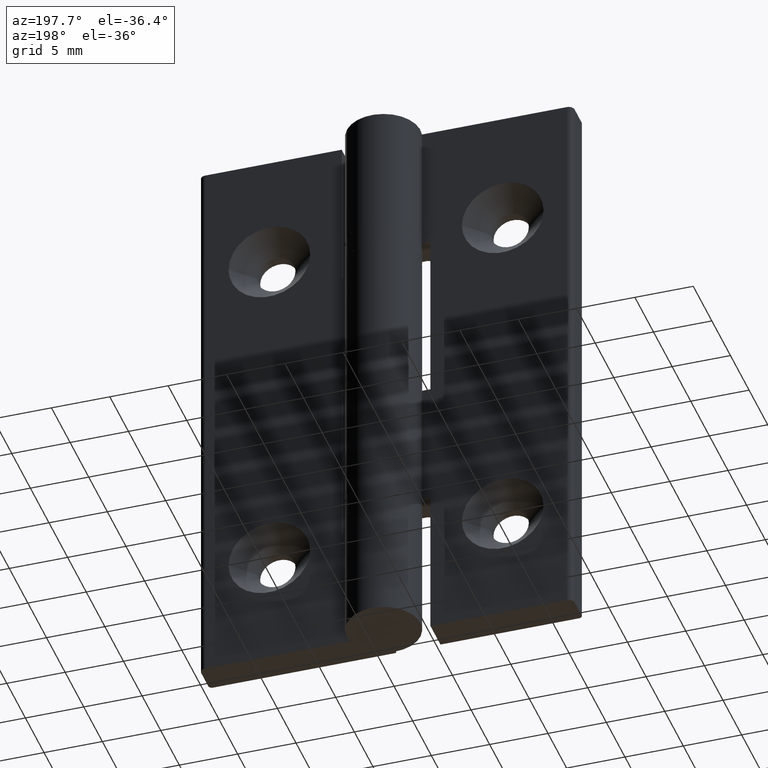
[diagram: clean part render]
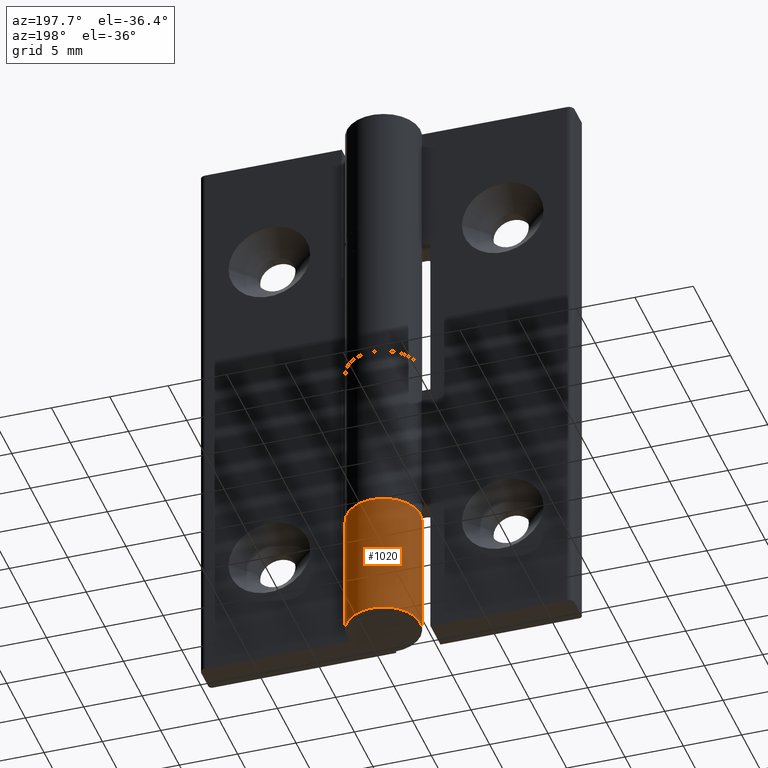
[diagram: same view with one face highlighted and labeled with its STEP entity id]
A machine part, auxiliary view. The second image highlights one B-rep face of the part: STEP entity #1020.
In plain terms, the highlighted cylindrical surface (partial cylindrical patch) has radius 3.15 mm, axis along (0, 0, -1).
Its self-contained STEP definition (entity closure, byte-faithful):
#77=CYLINDRICAL_SURFACE('',#1134,3.15);
#145=CIRCLE('',#1096,3.15);
#157=CIRCLE('',#1119,3.15);
#219=FACE_OUTER_BOUND('',#305,.T.);
#305=EDGE_LOOP('',(#928,#929,#930,#931));
#376=LINE('',#1685,#450);
#387=LINE('',#1737,#461);
#450=VECTOR('',#1371,11.);
#461=VECTOR('',#1434,11.);
#520=VERTEX_POINT('',#1639);
#521=VERTEX_POINT('',#1641);
#536=VERTEX_POINT('',#1683);
#547=VERTEX_POINT('',#1714);
#634=EDGE_CURVE('',#521,#520,#145,.T.);
#656=EDGE_CURVE('',#520,#536,#376,.T.);
#671=EDGE_CURVE('',#547,#536,#157,.T.);
#679=EDGE_CURVE('',#547,#521,#387,.T.);
#928=ORIENTED_EDGE('',*,*,#634,.T.);
#929=ORIENTED_EDGE('',*,*,#656,.T.);
#930=ORIENTED_EDGE('',*,*,#671,.F.);
#931=ORIENTED_EDGE('',*,*,#679,.T.);
#1020=ADVANCED_FACE('',(#219),#77,.T.);
#1096=AXIS2_PLACEMENT_3D('',#1642,#1331,#1332);
#1119=AXIS2_PLACEMENT_3D('',#1716,#1402,#1403);
#1134=AXIS2_PLACEMENT_3D('',#1738,#1435,#1436);
#1331=DIRECTION('center_axis',(0.,0.,-1.));
#1332=DIRECTION('ref_axis',(-1.,0.,0.));
#1371=DIRECTION('',(0.,0.,-1.));
#1402=DIRECTION('center_axis',(0.,0.,-1.));
#1403=DIRECTION('ref_axis',(-1.,0.,0.));
#1434=DIRECTION('',(0.,0.,1.));
#1435=DIRECTION('center_axis',(0.,0.,-1.));
#1436=DIRECTION('ref_axis',(-1.,0.,0.));
#1639=CARTESIAN_POINT('',(3.08220700148449,-0.649999999999999,-39.));
#1641=CARTESIAN_POINT('',(-4.11193712824135E-17,-3.15,-39.));
#1642=CARTESIAN_POINT('Origin',(0.,0.,-39.));
#1683=CARTESIAN_POINT('',(3.08220700148449,-0.649999999999999,-50.));
#1685=CARTESIAN_POINT('',(3.08220700148449,-0.649999999999999,0.));
#1714=CARTESIAN_POINT('',(-4.11193712824134E-17,-3.15,-50.));
#1716=CARTESIAN_POINT('Origin',(0.,0.,-50.));
#1737=CARTESIAN_POINT('',(-4.11193712824135E-17,-3.15,0.));
#1738=CARTESIAN_POINT('Origin',(0.,0.,0.));